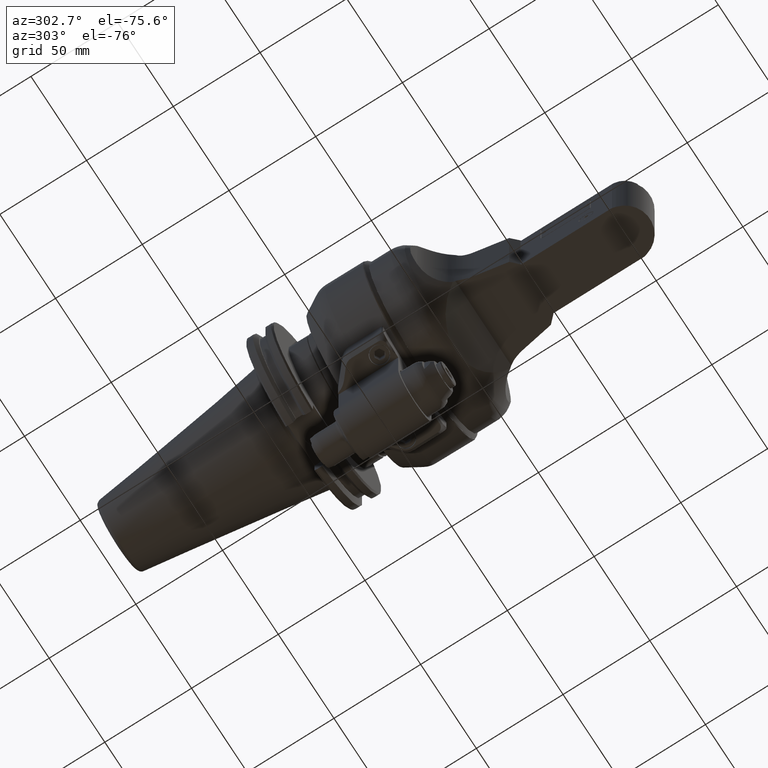
[diagram: clean part render]
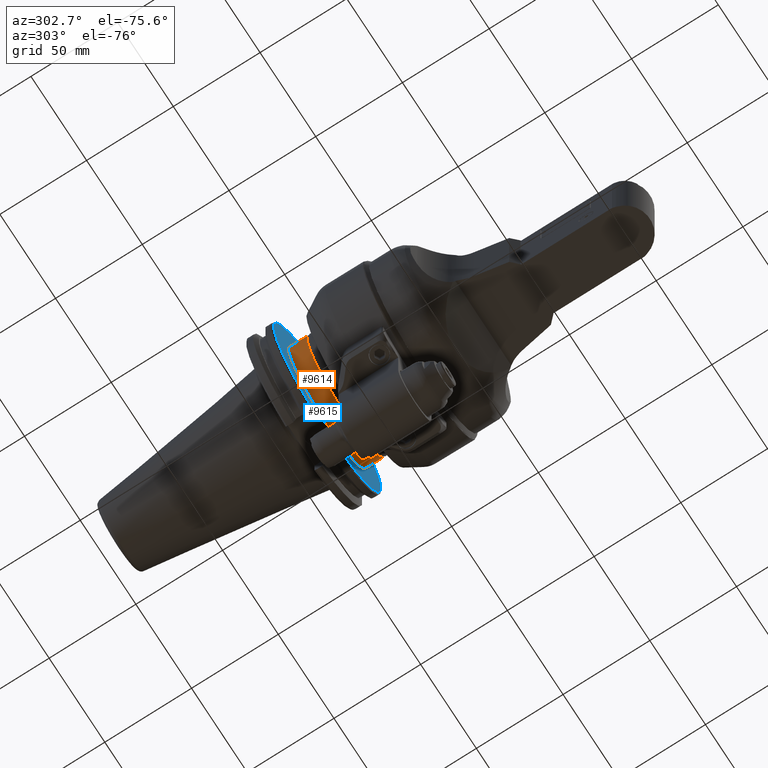
[diagram: same view with the hole feature highlighted: cylindrical wall and planar end face, labeled with their STEP entity ids]
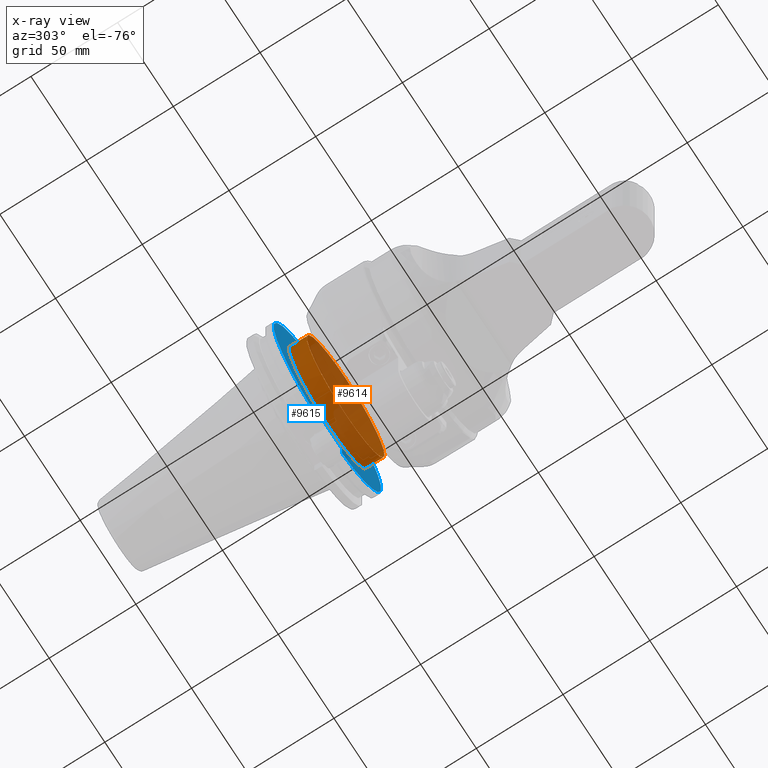
[diagram: x-ray of the same camera — body ghosted, the hole faces saturated]
A machine part, auxiliary view. The highlighted faces form one hole feature of diameter 69.85 mm: the cylindrical wall (entity #9614, orange) and its adjacent planar end face (entity #9615, blue) — they share a circular edge in the B-rep.
The next image is the same camera in x-ray (body ghosted, the hole faces saturated) — the bore reads through the body.
Wall:
#595=CYLINDRICAL_SURFACE('',#10747,1.375);
#1091=CIRCLE('',#10745,1.375);
#1092=CIRCLE('',#10746,1.375);
#1093=CIRCLE('',#10748,1.375);
#1638=FACE_OUTER_BOUND('',#2297,.T.);
#2297=EDGE_LOOP('',(#8442,#8443,#8444,#8445,#8446));
#2972=LINE('',#18851,#3653);
#3653=VECTOR('',#13458,1.375);
#4555=VERTEX_POINT('',#18844);
#4556=VERTEX_POINT('',#18845);
#4557=VERTEX_POINT('',#18850);
#5879=EDGE_CURVE('',#4555,#4556,#1091,.T.);
#5881=EDGE_CURVE('',#4556,#4555,#1092,.T.);
#5882=EDGE_CURVE('',#4555,#4557,#2972,.T.);
#5883=EDGE_CURVE('',#4557,#4557,#1093,.T.);
#8442=ORIENTED_EDGE('',*,*,#5879,.F.);
#8443=ORIENTED_EDGE('',*,*,#5882,.T.);
#8444=ORIENTED_EDGE('',*,*,#5883,.F.);
#8445=ORIENTED_EDGE('',*,*,#5882,.F.);
#8446=ORIENTED_EDGE('',*,*,#5881,.F.);
#9614=ADVANCED_FACE('',(#1638),#595,.T.);
#10745=AXIS2_PLACEMENT_3D('',#18846,#13451,#13452);
#10746=AXIS2_PLACEMENT_3D('',#18848,#13454,#13455);
#10747=AXIS2_PLACEMENT_3D('',#18849,#13456,#13457);
#10748=AXIS2_PLACEMENT_3D('',#18852,#13459,#13460);
#13451=DIRECTION('center_axis',(0.,-1.,0.));
#13452=DIRECTION('ref_axis',(1.,0.,0.));
#13454=DIRECTION('center_axis',(0.,-1.,0.));
#13455=DIRECTION('ref_axis',(1.,0.,0.));
#13456=DIRECTION('center_axis',(0.,-1.,0.));
#13457=DIRECTION('ref_axis',(0.,0.,-1.));
#13458=DIRECTION('',(0.,1.,0.));
#13459=DIRECTION('center_axis',(0.,1.,0.));
#13460=DIRECTION('ref_axis',(0.,0.,-1.));
#18844=CARTESIAN_POINT('',(0.,1.77165354330709,1.375));
#18845=CARTESIAN_POINT('',(1.375,1.77165354330709,-1.68388934882761E-16));
#18846=CARTESIAN_POINT('Origin',(0.,1.77165354330709,0.));
#18848=CARTESIAN_POINT('Origin',(0.,1.77165354330709,0.));
#18849=CARTESIAN_POINT('Origin',(0.,1.67322834645669,0.));
#18850=CARTESIAN_POINT('',(0.,2.18307086614173,1.375));
#18851=CARTESIAN_POINT('',(-1.68388934882761E-16,1.67322834645669,1.375));
#18852=CARTESIAN_POINT('Origin',(0.,2.18307086614173,0.));
End face:
#440=FACE_BOUND('',#2299,.T.);
#1093=CIRCLE('',#10748,1.375);
#1094=CIRCLE('',#10750,1.90157480314961);
#1095=CIRCLE('',#10751,1.90157480314961);
#1639=FACE_OUTER_BOUND('',#2298,.T.);
#2298=EDGE_LOOP('',(#8447,#8448,#8449,#8450,#8451,#8452,#8453,#8454));
#2299=EDGE_LOOP('',(#8455));
#2973=LINE('',#18856,#3654);
#2974=LINE('',#18858,#3655);
#2975=LINE('',#18860,#3656);
#2976=LINE('',#18864,#3657);
#2977=LINE('',#18866,#3658);
#2978=LINE('',#18868,#3659);
#3654=VECTOR('',#13463,0.441907948553543);
#3655=VECTOR('',#13464,1.02);
#3656=VECTOR('',#13465,0.441907948553543);
#3657=VECTOR('',#13468,0.346907948553661);
#3658=VECTOR('',#13469,1.02);
#3659=VECTOR('',#13470,0.346907948553504);
#4557=VERTEX_POINT('',#18850);
#4558=VERTEX_POINT('',#18854);
#4559=VERTEX_POINT('',#18855);
#4560=VERTEX_POINT('',#18857);
#4561=VERTEX_POINT('',#18859);
#4562=VERTEX_POINT('',#18861);
#4563=VERTEX_POINT('',#18863);
#4564=VERTEX_POINT('',#18865);
#4565=VERTEX_POINT('',#18867);
#5883=EDGE_CURVE('',#4557,#4557,#1093,.T.);
#5884=EDGE_CURVE('',#4558,#4559,#2973,.T.);
#5885=EDGE_CURVE('',#4559,#4560,#2974,.T.);
#5886=EDGE_CURVE('',#4560,#4561,#2975,.T.);
#5887=EDGE_CURVE('',#4561,#4562,#1094,.T.);
#5888=EDGE_CURVE('',#4562,#4563,#2976,.T.);
#5889=EDGE_CURVE('',#4563,#4564,#2977,.T.);
#5890=EDGE_CURVE('',#4564,#4565,#2978,.T.);
#5891=EDGE_CURVE('',#4565,#4558,#1095,.T.);
#8447=ORIENTED_EDGE('',*,*,#5884,.T.);
#8448=ORIENTED_EDGE('',*,*,#5885,.T.);
#8449=ORIENTED_EDGE('',*,*,#5886,.T.);
#8450=ORIENTED_EDGE('',*,*,#5887,.T.);
#8451=ORIENTED_EDGE('',*,*,#5888,.T.);
#8452=ORIENTED_EDGE('',*,*,#5889,.T.);
#8453=ORIENTED_EDGE('',*,*,#5890,.T.);
#8454=ORIENTED_EDGE('',*,*,#5891,.T.);
#8455=ORIENTED_EDGE('',*,*,#5883,.T.);
#9085=PLANE('',#10749);
#9615=ADVANCED_FACE('',(#1639,#440),#9085,.T.);
#10748=AXIS2_PLACEMENT_3D('',#18852,#13459,#13460);
#10749=AXIS2_PLACEMENT_3D('',#18853,#13461,#13462);
#10750=AXIS2_PLACEMENT_3D('',#18862,#13466,#13467);
#10751=AXIS2_PLACEMENT_3D('',#18869,#13471,#13472);
#13459=DIRECTION('center_axis',(0.,1.,0.));
#13460=DIRECTION('ref_axis',(0.,0.,-1.));
#13461=DIRECTION('center_axis',(0.,-1.,0.));
#13462=DIRECTION('ref_axis',(1.,0.,0.));
#13463=DIRECTION('',(0.,0.,-1.));
#13464=DIRECTION('',(-1.,0.,0.));
#13465=DIRECTION('',(0.,0.,1.));
#13466=DIRECTION('center_axis',(0.,-1.,0.));
#13467=DIRECTION('ref_axis',(-0.268198757764,0.,0.9633636002745));
#13468=DIRECTION('',(-1.183369431042E-13,0.,1.));
#13469=DIRECTION('',(1.,0.,0.));
#13470=DIRECTION('',(0.,0.,-1.));
#13471=DIRECTION('center_axis',(0.,-1.,0.));
#13472=DIRECTION('ref_axis',(0.268198757764,0.,-0.9633636002745));
#18850=CARTESIAN_POINT('',(0.,2.18307086614173,1.375));
#18852=CARTESIAN_POINT('Origin',(0.,2.18307086614173,0.));
#18853=CARTESIAN_POINT('Origin',(1.73720472440945,2.18307086614173,0.));
#18854=CARTESIAN_POINT('',(0.51,2.18307086614173,1.83190794855354));
#18855=CARTESIAN_POINT('',(0.51,2.18307086614173,1.39));
#18856=CARTESIAN_POINT('',(0.51,2.18307086614173,1.83190794855354));
#18857=CARTESIAN_POINT('',(-0.51,2.18307086614173,1.39));
#18858=CARTESIAN_POINT('',(0.51,2.18307086614173,1.39));
#18859=CARTESIAN_POINT('',(-0.51,2.18307086614173,1.83190794855354));
#18860=CARTESIAN_POINT('',(-0.51,2.18307086614173,1.39));
#18861=CARTESIAN_POINT('',(-0.51,2.18307086614173,-1.83190794855354));
#18862=CARTESIAN_POINT('Origin',(0.,2.18307086614173,0.));
#18863=CARTESIAN_POINT('',(-0.51,2.18307086614173,-1.485));
#18864=CARTESIAN_POINT('',(-0.51,2.18307086614173,-1.83190794855354));
#18865=CARTESIAN_POINT('',(0.51,2.18307086614173,-1.485));
#18866=CARTESIAN_POINT('',(-0.51,2.18307086614173,-1.485));
#18867=CARTESIAN_POINT('',(0.51,2.18307086614173,-1.83190794855354));
#18868=CARTESIAN_POINT('',(0.51,2.18307086614173,-1.485));
#18869=CARTESIAN_POINT('Origin',(0.,2.18307086614173,0.));